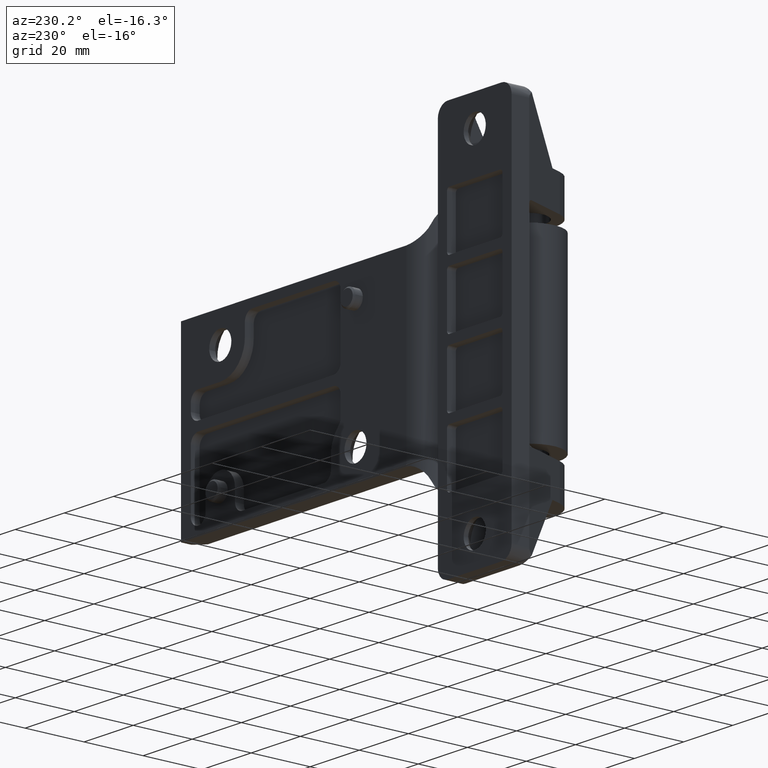
[diagram: clean part render]
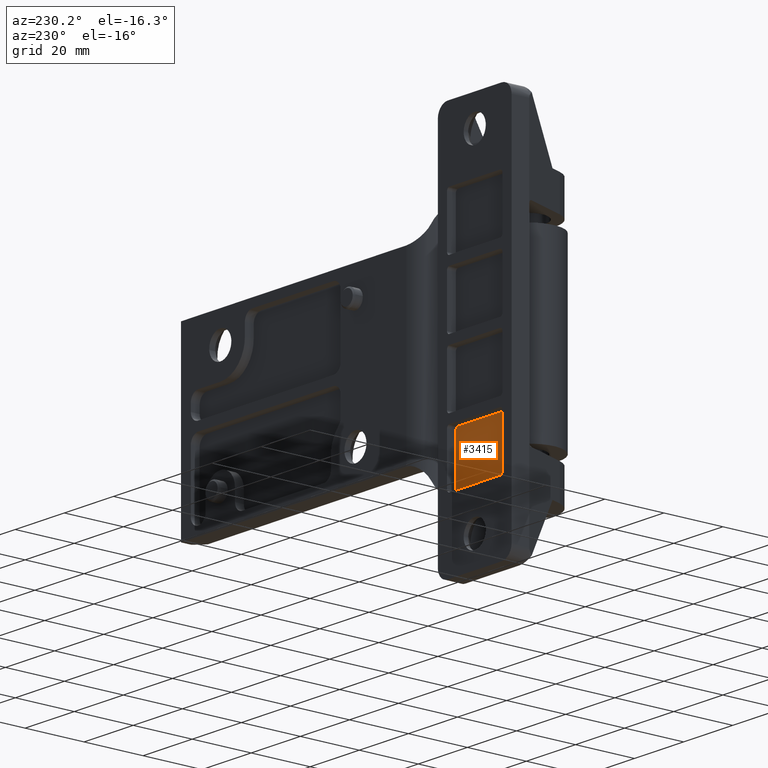
[diagram: same view with one face highlighted and labeled with its STEP entity id]
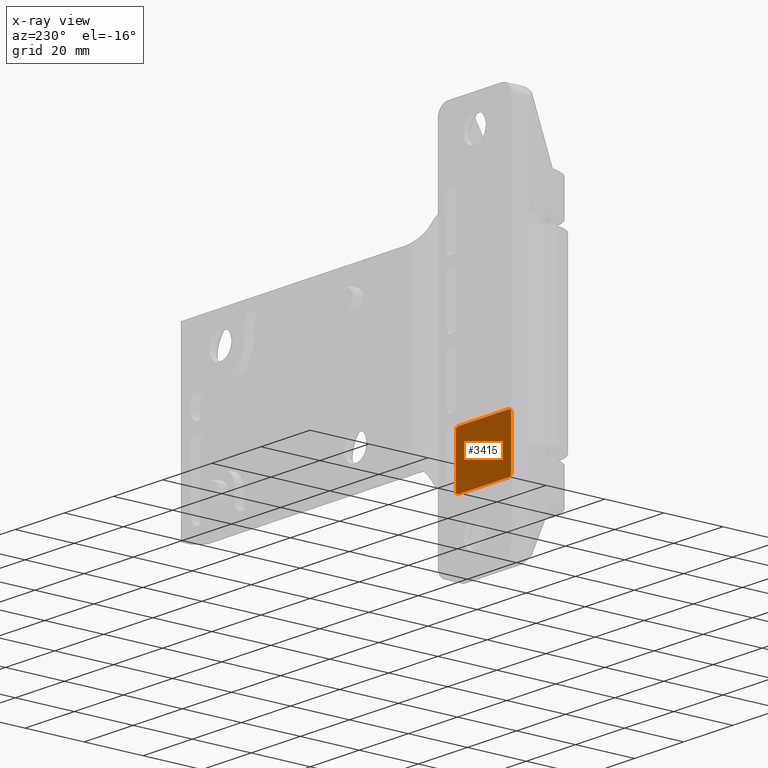
[diagram: x-ray of the same camera — body ghosted, the highlighted face saturated]
A machine part, auxiliary view. The second image highlights one B-rep face of the part: STEP entity #3415.
The next image is the same camera in x-ray: the body ghosted, the highlighted face saturated — about 0% of this face is hidden behind the body in this view.
In plain terms, the highlighted face is a freeform B-spline surface patch.
Its self-contained STEP definition (entity closure, byte-faithful):
#3316=CARTESIAN_POINT('',(12.408522819378780,14.500000000000000,-42.424094154155398));
#3317=CARTESIAN_POINT('',(-12.408523020854989,14.500000000000000,-42.424094154155398));
#3318=CARTESIAN_POINT('',(12.408522819378780,14.500000000000000,-22.075942399321221));
#3319=CARTESIAN_POINT('',(-12.408523020854989,14.500000000000000,-22.075942399321221));
#3320=B_SPLINE_SURFACE_WITH_KNOTS('',1,1,((#3316,#3318),(#3317,#3319)),.UNSPECIFIED.,.F.,.F.,.U.,(2,2),(2,2),(0.0,24.817045840233771),(0.0,20.348151754834181),.UNSPECIFIED.);
#3321=CARTESIAN_POINT('',(11.281500535968959,14.500000000000000,-40.500017428070549));
#3322=VERTEX_POINT('',#3321);
#3323=CARTESIAN_POINT('',(11.281500535968901,14.500000000000000,-24.000016644362599));
#3324=VERTEX_POINT('',#3323);
#3325=CARTESIAN_POINT('',(11.281500535968959,14.500000000000000,-40.500017428070549));
#3326=CARTESIAN_POINT('',(11.281500535968901,14.500000000000000,-24.000016644362599));
#3327=QUASI_UNIFORM_CURVE('',1,(#3325,#3326),.UNSPECIFIED.,.F.,.U.);
#3328=EDGE_CURVE('',#3322,#3324,#3327,.T.);
#3329=ORIENTED_EDGE('',*,*,#3328,.F.);
#3330=CARTESIAN_POINT('',(10.281500488471201,14.500000000000000,-41.500017475568050));
#3331=VERTEX_POINT('',#3330);
#3332=CARTESIAN_POINT('',(11.281500535968970,14.500000000000000,-40.500017428070549));
#3333=CARTESIAN_POINT('',(11.281500535968972,14.499999999999998,-40.914231010117824));
#3334=CARTESIAN_POINT('',(10.988607303243720,14.500000000000000,-41.207124242842987));
#3335=CARTESIAN_POINT('',(10.695714070518479,14.499999999999998,-41.500017475568143));
#3336=CARTESIAN_POINT('',(10.281500488471201,14.500000000000000,-41.500017475568022));
#3344=(BOUNDED_CURVE()B_SPLINE_CURVE(2,(#3332,#3333,#3334,#3335,#3336),.UNSPECIFIED.,.F.,.U.)B_SPLINE_CURVE_WITH_KNOTS((3,2,3),(0.0,0.500000000000000,1.0),.UNSPECIFIED.)CURVE()GEOMETRIC_REPRESENTATION_ITEM()RATIONAL_B_SPLINE_CURVE((1.0,0.923879532511258,1.0,0.923879532511258,1.0))REPRESENTATION_ITEM(''));
#3345=EDGE_CURVE('',#3322,#3331,#3344,.T.);
#3346=ORIENTED_EDGE('',*,*,#3345,.T.);
#3347=CARTESIAN_POINT('',(-10.281500488218599,14.500000000000000,-41.500017475568050));
#3348=VERTEX_POINT('',#3347);
#3349=CARTESIAN_POINT('',(-10.281500488218599,14.500000000000000,-41.500017475568050));
#3350=CARTESIAN_POINT('',(10.281500488471201,14.500000000000000,-41.500017475568050));
#3351=QUASI_UNIFORM_CURVE('',1,(#3349,#3350),.UNSPECIFIED.,.F.,.U.);
#3352=EDGE_CURVE('',#3348,#3331,#3351,.T.);
#3353=ORIENTED_EDGE('',*,*,#3352,.F.);
#3354=CARTESIAN_POINT('',(-11.281500535716219,14.500000000000000,-40.500017428070649));
#3355=VERTEX_POINT('',#3354);
#3356=CARTESIAN_POINT('',(-10.281500488218599,14.500000000000000,-41.500017475568043));
#3357=CARTESIAN_POINT('',(-10.695714070265749,14.500000000000000,-41.500017475568036));
#3358=CARTESIAN_POINT('',(-10.988607302990850,14.500000000000000,-41.207124242842923));
#3359=CARTESIAN_POINT('',(-11.281500535715939,14.500000000000000,-40.914231010117817));
#3360=CARTESIAN_POINT('',(-11.281500535716219,14.500000000000000,-40.500017428070649));
#3368=(BOUNDED_CURVE()B_SPLINE_CURVE(2,(#3356,#3357,#3358,#3359,#3360),.UNSPECIFIED.,.F.,.U.)B_SPLINE_CURVE_WITH_KNOTS((3,2,3),(0.0,0.500000000000000,1.0),.UNSPECIFIED.)CURVE()GEOMETRIC_REPRESENTATION_ITEM()RATIONAL_B_SPLINE_CURVE((1.0,0.923879532511282,1.0,0.923879532511282,1.0))REPRESENTATION_ITEM(''));
#3369=EDGE_CURVE('',#3348,#3355,#3368,.T.);
#3370=ORIENTED_EDGE('',*,*,#3369,.T.);
#3371=CARTESIAN_POINT('',(-11.281500535716020,14.500000000000000,-24.000016644362649));
#3372=VERTEX_POINT('',#3371);
#3373=CARTESIAN_POINT('',(-11.281500535716020,14.500000000000000,-24.000016644362649));
#3374=CARTESIAN_POINT('',(-11.281500535716219,14.500000000000000,-40.500017428070649));
#3375=QUASI_UNIFORM_CURVE('',1,(#3373,#3374),.UNSPECIFIED.,.F.,.U.);
#3376=EDGE_CURVE('',#3372,#3355,#3375,.T.);
#3377=ORIENTED_EDGE('',*,*,#3376,.F.);
#3378=CARTESIAN_POINT('',(-10.281500488218819,14.500000000000000,-23.000016596865098));
#3379=VERTEX_POINT('',#3378);
#3380=CARTESIAN_POINT('',(-11.281500535716020,14.500000000000000,-24.000016644362649));
#3381=CARTESIAN_POINT('',(-11.281500535716019,14.500000000000000,-23.000016596865255));
#3382=CARTESIAN_POINT('',(-10.281500488218819,14.500000000000000,-23.000016596865098));
#3390=(BOUNDED_CURVE()B_SPLINE_CURVE(2,(#3380,#3381,#3382),.UNSPECIFIED.,.F.,.U.)CURVE()GEOMETRIC_REPRESENTATION_ITEM()QUASI_UNIFORM_CURVE()RATIONAL_B_SPLINE_CURVE((1.0,0.707106781186548,1.0))REPRESENTATION_ITEM(''));
#3391=EDGE_CURVE('',#3372,#3379,#3390,.T.);
#3392=ORIENTED_EDGE('',*,*,#3391,.T.);
#3393=CARTESIAN_POINT('',(10.281500488471460,14.500000000000000,-23.000016596865201));
#3394=VERTEX_POINT('',#3393);
#3395=CARTESIAN_POINT('',(10.281500488471460,14.500000000000000,-23.000016596865201));
#3396=CARTESIAN_POINT('',(-10.281500488218819,14.500000000000000,-23.000016596865098));
#3397=QUASI_UNIFORM_CURVE('',1,(#3395,#3396),.UNSPECIFIED.,.F.,.U.);
#3398=EDGE_CURVE('',#3394,#3379,#3397,.T.);
#3399=ORIENTED_EDGE('',*,*,#3398,.F.);
#3400=CARTESIAN_POINT('',(10.281500488471460,14.500000000000000,-23.000016596865180));
#3401=CARTESIAN_POINT('',(11.281500535968881,14.500000000000000,-23.000016596865180));
#3402=CARTESIAN_POINT('',(11.281500535968879,14.500000000000000,-24.000016644362599));
#3410=(BOUNDED_CURVE()B_SPLINE_CURVE(2,(#3400,#3401,#3402),.UNSPECIFIED.,.F.,.U.)CURVE()GEOMETRIC_REPRESENTATION_ITEM()QUASI_UNIFORM_CURVE()RATIONAL_B_SPLINE_CURVE((1.0,0.707106781186548,1.0))REPRESENTATION_ITEM(''));
#3411=EDGE_CURVE('',#3394,#3324,#3410,.T.);
#3412=ORIENTED_EDGE('',*,*,#3411,.T.);
#3413=EDGE_LOOP('',(#3329,#3346,#3353,#3370,#3377,#3392,#3399,#3412));
#3414=FACE_OUTER_BOUND('',#3413,.T.);
#3415=ADVANCED_FACE('',(#3414),#3320,.T.);